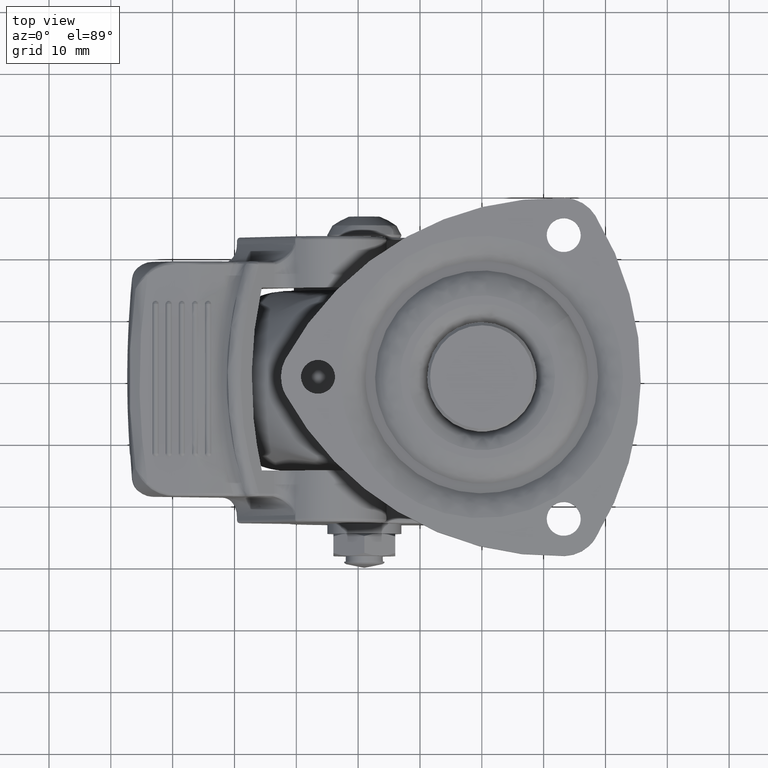
[diagram: clean part render]
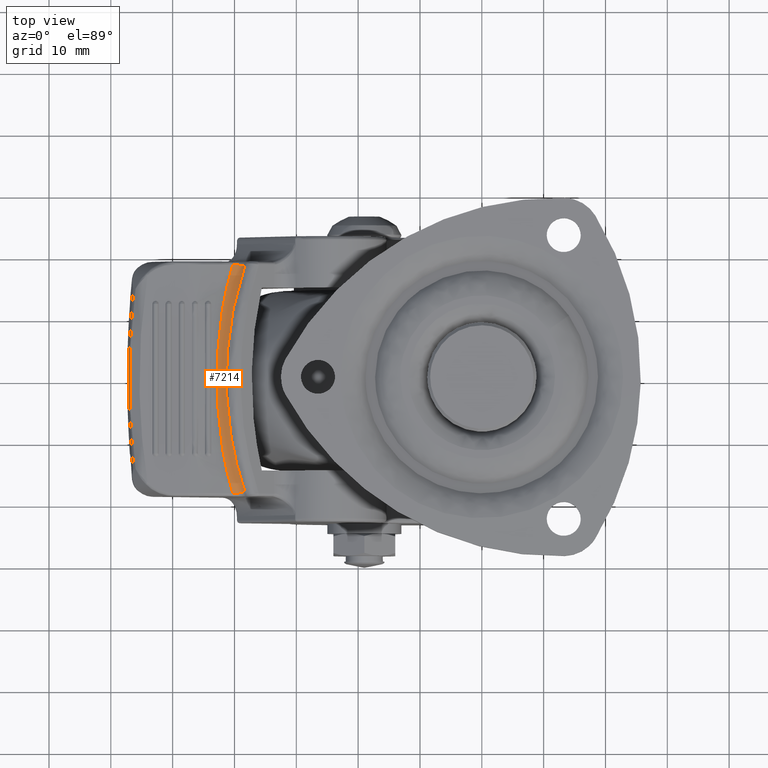
[diagram: same view with one face highlighted and labeled with its STEP entity id]
A machine part, top view. The second image highlights one B-rep face of the part: STEP entity #7214.
In plain terms, the highlighted face is a freeform B-spline surface patch.
Its self-contained STEP definition (entity closure, byte-faithful):
#3061=CARTESIAN_POINT('',(-39.709534720390550,-18.567988689888050,-18.982872447106001));
#3062=VERTEX_POINT('',#3061);
#3176=CARTESIAN_POINT('',(-40.265324539791600,-18.505156743313702,-18.790108130897551));
#3177=VERTEX_POINT('',#3176);
#3201=CARTESIAN_POINT('',(-39.709534720390550,-18.567988689888050,-18.982872447106001));
#3202=CARTESIAN_POINT('',(-39.807371431200608,-18.557711240111519,-18.965689237058498));
#3203=CARTESIAN_POINT('',(-39.902513022640427,-18.547327891845931,-18.940769812484980));
#3204=CARTESIAN_POINT('',(-40.087746838356033,-18.526379107085809,-18.876431672400869));
#3205=CARTESIAN_POINT('',(-40.177837500170867,-18.515813520964251,-18.837008500670400));
#3206=CARTESIAN_POINT('',(-40.265324539791600,-18.505156743313851,-18.790108130897551));
#3207=B_SPLINE_CURVE_WITH_KNOTS('',3,(#3201,#3202,#3203,#3204,#3205,#3206),.UNSPECIFIED.,.F.,.U.,(4,2,4),(0.0,0.500000000000000,1.0),.UNSPECIFIED.);
#3208=EDGE_CURVE('',#3062,#3177,#3207,.T.);
#4155=CARTESIAN_POINT('',(-38.333111116443398,-18.227456871348700,-18.324121191396699));
#4156=VERTEX_POINT('',#4155);
#4164=CARTESIAN_POINT('',(-39.709534720390550,-18.567988689888072,-18.982872447106029));
#4165=CARTESIAN_POINT('',(-38.852795419751878,-18.258177663073305,-19.077761330780508));
#4166=CARTESIAN_POINT('',(-38.333111116443433,-18.227456871348739,-18.324121191396671));
#4174=(BOUNDED_CURVE()B_SPLINE_CURVE(2,(#4164,#4165,#4166),.UNSPECIFIED.,.F.,.U.)CURVE()GEOMETRIC_REPRESENTATION_ITEM()QUASI_UNIFORM_CURVE()RATIONAL_B_SPLINE_CURVE((1.0,0.853459816548103,1.0))REPRESENTATION_ITEM(''));
#4175=EDGE_CURVE('',#3062,#4156,#4174,.T.);
#5826=CARTESIAN_POINT('',(-39.709534720390550,18.567988689888050,-18.982872447106001));
#5827=VERTEX_POINT('',#5826);
#5941=CARTESIAN_POINT('',(-40.265324539791600,18.505156743313702,-18.790108130897551));
#5942=VERTEX_POINT('',#5941);
#5956=CARTESIAN_POINT('',(-39.709534720390550,18.567988689888050,-18.982872447106001));
#5957=CARTESIAN_POINT('',(-39.807371431200608,18.557711240111509,-18.965689237058498));
#5958=CARTESIAN_POINT('',(-39.902513022640370,18.547327891845939,-18.940769812484831));
#5959=CARTESIAN_POINT('',(-40.087746838356082,18.526379107085830,-18.876431672401011));
#5960=CARTESIAN_POINT('',(-40.177837500170867,18.515813520964251,-18.837008500670400));
#5961=CARTESIAN_POINT('',(-40.265324539791600,18.505156743313851,-18.790108130897551));
#5962=B_SPLINE_CURVE_WITH_KNOTS('',3,(#5956,#5957,#5958,#5959,#5960,#5961),.UNSPECIFIED.,.F.,.U.,(4,2,4),(0.0,0.500000000000000,1.0),.UNSPECIFIED.);
#5963=EDGE_CURVE('',#5827,#5942,#5962,.T.);
#7010=CARTESIAN_POINT('',(-38.333111116443398,18.227456871348700,-18.324121191396699));
#7011=VERTEX_POINT('',#7010);
#7020=CARTESIAN_POINT('',(-39.709534720390550,18.567988689888072,-18.982872447106029));
#7021=CARTESIAN_POINT('',(-38.852795419751878,18.258177663073305,-19.077761330780508));
#7022=CARTESIAN_POINT('',(-38.333111116443433,18.227456871348739,-18.324121191396671));
#7030=(BOUNDED_CURVE()B_SPLINE_CURVE(2,(#7020,#7021,#7022),.UNSPECIFIED.,.F.,.U.)CURVE()GEOMETRIC_REPRESENTATION_ITEM()QUASI_UNIFORM_CURVE()RATIONAL_B_SPLINE_CURVE((1.0,0.853459816548103,1.0))REPRESENTATION_ITEM(''));
#7031=EDGE_CURVE('',#5827,#7011,#7030,.T.);
#7036=CARTESIAN_POINT('',(-40.141676671206760,-18.945459119601367,-18.861219602922574));
#7037=CARTESIAN_POINT('',(-40.160081383153361,-18.884793671948742,-18.850691628787779));
#7038=CARTESIAN_POINT('',(-40.178486293689950,-18.824127569705663,-18.840163541054348));
#7039=CARTESIAN_POINT('',(-40.426972029691477,-18.005071099082357,-18.698023234317578));
#7040=CARTESIAN_POINT('',(-40.643100765035747,-17.236191062242693,-18.573510901981845));
#7041=CARTESIAN_POINT('',(-41.042233584378288,-15.698007964312733,-18.342365982038963));
#7042=CARTESIAN_POINT('',(-41.225760563539147,-14.927270275375919,-18.235436754746662));
#7043=CARTESIAN_POINT('',(-41.730172416078659,-12.609895115968062,-17.940306912947836));
#7044=CARTESIAN_POINT('',(-42.004944180887286,-11.058162465968442,-17.777771874861028));
#7045=CARTESIAN_POINT('',(-42.657134276656080,-6.379088249325822,-17.390302284262486));
#7046=CARTESIAN_POINT('',(-42.864266286923403,-3.228883220917938,-17.264821523877313));
#7047=CARTESIAN_POINT('',(-42.866018991626163,1.574543862247204,-17.263766110925626));
#7048=CARTESIAN_POINT('',(-42.814414323366186,3.169645054539271,-17.294898122800262));
#7049=CARTESIAN_POINT('',(-42.654932915325595,5.556268689658560,-17.390558273667214));
#7050=CARTESIAN_POINT('',(-42.587989405552186,6.350859685337404,-17.430659213613367));
#7051=CARTESIAN_POINT('',(-42.425277543364651,7.938734936462400,-17.527852308121361));
#7052=CARTESIAN_POINT('',(-42.329264987035636,8.733570702781668,-17.585090451829874));
#7053=CARTESIAN_POINT('',(-41.777609180020377,12.680184333126748,-17.912825060511832));
#7054=CARTESIAN_POINT('',(-41.109101175413315,15.756606402982742,-18.307850953273359));
#7055=CARTESIAN_POINT('',(-40.178652159824551,18.823581576616206,-18.840068194641976));
#7056=CARTESIAN_POINT('',(-40.160413110973664,18.883701700426549,-18.850500938512919));
#7057=CARTESIAN_POINT('',(-40.142174256263907,18.943821184302745,-18.860933571335053));
#7058=CARTESIAN_POINT('',(-40.137589727399721,-18.943625595784592,-18.863447636306446));
#7059=CARTESIAN_POINT('',(-40.155993281217093,-18.882964853751478,-18.852911312239037));
#7060=CARTESIAN_POINT('',(-40.174396934449661,-18.822303784031707,-18.842374931254877));
#7061=CARTESIAN_POINT('',(-40.422855988897631,-18.003347252200761,-18.700128214065476));
#7062=CARTESIAN_POINT('',(-40.638966202741628,-17.234560091779525,-18.575520924385003));
#7063=CARTESIAN_POINT('',(-41.038074224814650,-15.696558251906536,-18.344193105803996));
#7064=CARTESIAN_POINT('',(-41.221594948946553,-14.925908798772342,-18.237176110024730));
#7065=CARTESIAN_POINT('',(-41.726003375606730,-12.608792996281574,-17.941792200642983));
#7066=CARTESIAN_POINT('',(-42.000792352724062,-11.057220112603909,-17.779105949342821));
#7067=CARTESIAN_POINT('',(-42.653062798161450,-6.378599233047366,-17.391238546401958));
#7068=CARTESIAN_POINT('',(-42.860277137956722,-3.228635496658261,-17.265585903111148));
#7069=CARTESIAN_POINT('',(-42.862030453429369,1.574423047948104,-17.264529072895698));
#7070=CARTESIAN_POINT('',(-42.810406244931244,3.169402471442722,-17.295704023553114));
#7071=CARTESIAN_POINT('',(-42.650882071218156,5.555828973748122,-17.391481332143456));
#7072=CARTESIAN_POINT('',(-42.583922620976807,6.350352508947509,-17.431629462163130));
#7073=CARTESIAN_POINT('',(-42.421179346186854,7.938087193020935,-17.528930940261667));
#7074=CARTESIAN_POINT('',(-42.325151413532573,8.732849926390232,-17.586230148109049));
#7075=CARTESIAN_POINT('',(-41.773432681813141,12.679091460064678,-17.914291239452375));
#7076=CARTESIAN_POINT('',(-41.104911547893536,15.755176362853817,-18.309652315146351));
#7077=CARTESIAN_POINT('',(-40.174560949199169,18.821763534865891,-18.842280797501406));
#7078=CARTESIAN_POINT('',(-40.156321308498725,18.881884362726559,-18.852723046002819));
#7079=CARTESIAN_POINT('',(-40.138081764996102,18.942004870207189,-18.863165238858141));
#7080=CARTESIAN_POINT('',(-39.035422304642310,-18.449160705854130,-19.464303906525494));
#7081=CARTESIAN_POINT('',(-39.054316913052801,-18.390128368506371,-19.451079567626973));
#7082=CARTESIAN_POINT('',(-39.073184207874831,-18.331181366876237,-19.437874345512572));
#7083=CARTESIAN_POINT('',(-39.325249035994105,-17.543656394472944,-19.261454139333733));
#7084=CARTESIAN_POINT('',(-39.545926079434800,-16.803385996590261,-19.106903687329883));
#7085=CARTESIAN_POINT('',(-39.956207142378823,-15.319481899824060,-18.819435754735927));
#7086=CARTESIAN_POINT('',(-40.146335474414080,-14.574474314182121,-18.686151453458105));
#7087=CARTESIAN_POINT('',(-40.672605923169641,-12.330318829899511,-18.317081978893576));
#7088=CARTESIAN_POINT('',(-40.964735977400970,-10.822063171430688,-18.112013843812345));
#7089=CARTESIAN_POINT('',(-41.668336545326873,-6.260325940410583,-17.617682554267088));
#7090=CARTESIAN_POINT('',(-41.908533123353756,-3.169532644548696,-17.447953963756078));
#7091=CARTESIAN_POINT('',(-41.910535486928907,1.545601913035276,-17.446539232592944));
#7092=CARTESIAN_POINT('',(-41.851058602519103,3.111339355777732,-17.488599197589455));
#7093=CARTESIAN_POINT('',(-41.672515499631224,5.449628059480215,-17.614419942670274));
#7094=CARTESIAN_POINT('',(-41.598087516552781,6.227407150021346,-17.666828810111966));
#7095=CARTESIAN_POINT('',(-41.419257422832260,7.779727717730015,-17.792633525012995));
#7096=CARTESIAN_POINT('',(-41.314596572940111,8.555781479501471,-17.866211918434821));
#7097=CARTESIAN_POINT('',(-40.719577336197922,12.403326917283845,-18.284252014592298));
#7098=CARTESIAN_POINT('',(-40.016590593042174,15.383701182484023,-18.777584097715433));
#7099=CARTESIAN_POINT('',(-39.072860508010365,18.332192700746781,-19.438100902994528));
#7100=CARTESIAN_POINT('',(-39.053669420180462,18.392151327254702,-19.451532747781815));
#7101=CARTESIAN_POINT('',(-39.034450926220629,18.452195578607022,-19.464983774122889));
#7102=CARTESIAN_POINT('',(-38.270747543584136,-18.401603760375703,-18.353458251595320));
#7103=CARTESIAN_POINT('',(-38.290554033959722,-18.343497116640819,-18.342256287861940));
#7104=CARTESIAN_POINT('',(-38.310360635315433,-18.285390147321785,-18.331054261361540));
#7105=CARTESIAN_POINT('',(-38.577760621794944,-17.500914177353522,-18.179820756886922));
#7106=CARTESIAN_POINT('',(-38.812255827408364,-16.762784140817338,-18.047364747590688));
#7107=CARTESIAN_POINT('',(-39.248754545971309,-15.282895070484150,-17.801521018560123));
#7108=CARTESIAN_POINT('',(-39.451313857159867,-14.539766818113492,-17.687817515459884));
#7109=CARTESIAN_POINT('',(-40.012892812958512,-12.301005388236788,-17.374064219040598));
#7110=CARTESIAN_POINT('',(-40.325966288676931,-10.796016783691254,-17.201391673379792));
#7111=CARTESIAN_POINT('',(-41.083443576817245,-6.244190581830842,-16.790023800045521));
#7112=CARTESIAN_POINT('',(-41.347935335320471,-3.160833182212208,-16.657286594465791));
#7113=CARTESIAN_POINT('',(-41.350132170295808,1.541359675347884,-16.656169345079025));
#7114=CARTESIAN_POINT('',(-41.284690496992170,3.102867290528601,-16.689109326102262));
#7115=CARTESIAN_POINT('',(-41.090170113642984,5.435477680304381,-16.790484177132356));
#7116=CARTESIAN_POINT('',(-41.009275422875888,6.211456922838575,-16.832995817287593));
#7117=CARTESIAN_POINT('',(-40.815632606294514,7.760293685295651,-16.936091290658869));
#7118=CARTESIAN_POINT('',(-40.702607857588056,8.534658528555058,-16.996829929955044));
#7119=CARTESIAN_POINT('',(-40.062067368468917,12.373845859357626,-17.344768772730241));
#7120=CARTESIAN_POINT('',(-39.311703906311635,15.347751705331998,-17.764737998678491));
#7121=CARTESIAN_POINT('',(-38.310539383896945,18.284865356590817,-18.330952890431181));
#7122=CARTESIAN_POINT('',(-38.290911528635164,18.342447542479029,-18.342053547409712));
#7123=CARTESIAN_POINT('',(-38.271283781865847,18.400029410083096,-18.353154143029620));
#7124=CARTESIAN_POINT('',(-38.267807101170291,-18.401420887255412,-18.349186660789226));
#7125=CARTESIAN_POINT('',(-38.287614955750399,-18.343317672339467,-18.337989363625688));
#7126=CARTESIAN_POINT('',(-38.307423032013105,-18.285213807152669,-18.326791941145913));
#7127=CARTESIAN_POINT('',(-38.574853766156437,-17.500747960121942,-18.175614468151426));
#7128=CARTESIAN_POINT('',(-38.809377888473946,-16.762624873542684,-18.043208536596985));
#7129=CARTESIAN_POINT('',(-39.245933961368365,-15.282749200290120,-17.797462634088074));
#7130=CARTESIAN_POINT('',(-39.448521607173504,-14.539627380716105,-17.683806707946069));
#7131=CARTESIAN_POINT('',(-40.010185167256033,-12.300885077736483,-17.370193812427043));
#7132=CARTESIAN_POINT('',(-40.323311715165509,-10.795908541155351,-17.197607346203373));
#7133=CARTESIAN_POINT('',(-41.080935668781109,-6.244121396530921,-16.786474959227384));
#7134=CARTESIAN_POINT('',(-41.345498580193507,-3.160795368186000,-16.653849793952133));
#7135=CARTESIAN_POINT('',(-41.347695995866651,1.541341233574487,-16.652733464433073));
#7136=CARTESIAN_POINT('',(-41.282236585123023,3.102830583480185,-16.685645363944538));
#7137=CARTESIAN_POINT('',(-41.087669633973128,5.435416921283530,-16.786946354595134));
#7138=CARTESIAN_POINT('',(-41.006756459317018,6.211388687078033,-16.829428643743341));
#7139=CARTESIAN_POINT('',(-40.813072115572687,7.760211248890826,-16.932457960179715));
#7140=CARTESIAN_POINT('',(-40.700024412094606,8.534569360256587,-16.993159926041777));
#7141=CARTESIAN_POINT('',(-40.059365111260256,12.373724697086006,-17.340907652006074));
#7142=CARTESIAN_POINT('',(-39.308889886702097,15.347608189309417,-17.760694556182262));
#7143=CARTESIAN_POINT('',(-38.307603686610726,18.284683099073085,-18.326689265413933));
#7144=CARTESIAN_POINT('',(-38.287976259955677,18.342256270826105,-18.337784014988614));
#7145=CARTESIAN_POINT('',(-38.268349049993411,18.399828806953682,-18.348878642073853));
#7153=(BOUNDED_SURFACE()B_SPLINE_SURFACE(3,2,((#7036,#7058,#7080,#7102,#7124),(#7037,#7059,#7081,#7103,#7125),(#7038,#7060,#7082,#7104,#7126),(#7039,#7061,#7083,#7105,#7127),(#7040,#7062,#7084,#7106,#7128),(#7041,#7063,#7085,#7107,#7129),(#7042,#7064,#7086,#7108,#7130),(#7043,#7065,#7087,#7109,#7131),(#7044,#7066,#7088,#7110,#7132),(#7045,#7067,#7089,#7111,#7133),(#7046,#7068,#7090,#7112,#7134),(#7047,#7069,#7091,#7113,#7135),(#7048,#7070,#7092,#7114,#7136),(#7049,#7071,#7093,#7115,#7137),(#7050,#7072,#7094,#7116,#7138),(#7051,#7073,#7095,#7117,#7139),(#7052,#7074,#7096,#7118,#7140),(#7053,#7075,#7097,#7119,#7141),(#7054,#7076,#7098,#7120,#7142),(#7055,#7077,#7099,#7121,#7143),(#7056,#7078,#7100,#7122,#7144),(#7057,#7079,#7101,#7123,#7145)),.UNSPECIFIED.,.F.,.F.,.U.)B_SPLINE_SURFACE_WITH_KNOTS((4,2,2,2,2,2,2,2,2,2,4),(3,1,1,3),(0.0,0.193299201795698,2.609539278217874,5.025779354640051,9.858259507484400,19.523219813173100,24.355699966017450,26.771940042439621,29.188180118861801,38.853140424550503,39.046439626343741),(0.0,0.011513921356037,2.306546695708669,2.318490160818925),.UNSPECIFIED.)GEOMETRIC_REPRESENTATION_ITEM()RATIONAL_B_SPLINE_SURFACE(((1.002561284443251,1.001280642221625,0.744733720166587,1.001328418461420,1.002656836922841),(1.002555875598566,1.001277937799283,0.745272783941601,1.001325613146629,1.002651226293258),(1.002550466753881,1.001275233376941,0.745811847716614,1.001322807831837,1.002645615663675),(1.002477447349127,1.001238723674564,0.753089208829826,1.001284936081367,1.002569872162735),(1.002412227857572,1.001206113928786,0.759589204184003,1.001251109781109,1.002502219562217),(1.002288290938605,1.001144145469302,0.771941177164704,1.001186829497190,1.002373658994380),(1.002229432689138,1.001114716344569,0.777807189593958,1.001156302475716,1.002312604951433),(1.002062241150201,1.001031120575101,0.794470064455986,1.001069588043236,1.002139176086473),(1.001963077853038,1.000981538926519,0.804353014406961,1.001018156678401,1.002036313356803),(1.001708827954235,1.000854413977117,0.829692420183024,1.000886289145971,1.001772578291942),(1.001595458770785,1.000797729385392,0.840991176860898,1.000827489852262,1.001654979704523),(1.001594550059100,1.000797275029550,0.841081742144147,1.000827018546007,1.001654037092014),(1.001622388823154,1.000811194411577,0.838307236659706,1.000841457211033,1.001682914422066),(1.001697274769112,1.000848637384556,0.830843849730146,1.000880297049136,1.001760594098272),(1.001727622734592,1.000863811367296,0.827819268735695,1.000896037119598,1.001792074239196),(1.001797285098678,1.000898642549339,0.820876481661995,1.000932167730066,1.001864335460133),(1.001836685901939,1.000918342950970,0.816949664202280,1.000952603084127,1.001905206168254),(1.002051536419832,1.001025768209916,0.795536934129623,1.001064036000204,1.002128072000408),(1.002278269927479,1.001139134963739,0.772939905063526,1.001181632067355,1.002363264134709),(1.002550393668712,1.001275196834356,0.745819131632080,1.001322769925978,1.002645539851955),(1.002555729428227,1.001277864714113,0.745287351772528,1.001325537334910,1.002651074669819),(1.002561065187742,1.001280532593871,0.744755571912976,1.001328304743842,1.002656609487683)))REPRESENTATION_ITEM('')SURFACE());
#7154=ORIENTED_EDGE('',*,*,#7031,.F.);
#7155=ORIENTED_EDGE('',*,*,#5963,.T.);
#7156=CARTESIAN_POINT('',(-40.265324539791600,-18.505156743313702,-18.790108130897551));
#7157=CARTESIAN_POINT('',(-40.712205951397003,-17.007527060451181,-18.533663172417409));
#7158=CARTESIAN_POINT('',(-41.097113189454340,-15.497574198247021,-18.309560288655309));
#7159=CARTESIAN_POINT('',(-41.750269100531618,-12.454093410740310,-17.926466190933301));
#7160=CARTESIAN_POINT('',(-42.018444335213367,-10.920552169698080,-17.767498902183060));
#7161=CARTESIAN_POINT('',(-42.443305642898132,-7.830692613008363,-17.514550641402408));
#7162=CARTESIAN_POINT('',(-42.599934729706867,-6.274363811686705,-17.420589946680639));
#7163=CARTESIAN_POINT('',(-42.755323303804872,-3.923512334187408,-17.327199085304350));
#7164=CARTESIAN_POINT('',(-42.793877341724198,-3.137173061791319,-17.303975085771061));
#7165=CARTESIAN_POINT('',(-42.832277823412518,-1.953661868468390,-17.280830302091012));
#7166=CARTESIAN_POINT('',(-42.841837413838611,-1.558490686278544,-17.275064780319301));
#7167=CARTESIAN_POINT('',(-42.854496910494653,-0.766817038816777,-17.267428594369299));
#7168=CARTESIAN_POINT('',(-42.857581236009203,-0.371066416559108,-17.265567369215571));
#7169=CARTESIAN_POINT('',(-42.856934356785203,1.603547358075363,-17.265957669755789));
#7170=CARTESIAN_POINT('',(-42.805493501271613,3.173817871018128,-17.297048578171871));
#7171=CARTESIAN_POINT('',(-42.597940121914377,6.295052129960399,-17.421786157963449));
#7172=CARTESIAN_POINT('',(-42.441478693433062,7.845951473329770,-17.515641933076079));
#7173=CARTESIAN_POINT('',(-42.017236375049393,10.927350920187211,-17.768214468788202));
#7174=CARTESIAN_POINT('',(-41.749512146007717,12.457860330886330,-17.926911633993601));
#7175=CARTESIAN_POINT('',(-41.097041842238077,15.497666573325830,-18.309600665728400));
#7176=CARTESIAN_POINT('',(-40.712370526734460,17.006975520594850,-18.533568730101901));
#7177=CARTESIAN_POINT('',(-40.265324539791600,18.505156743313702,-18.790108130897551));
#7178=B_SPLINE_CURVE_WITH_KNOTS('',3,(#7156,#7157,#7158,#7159,#7160,#7161,#7162,#7163,#7164,#7165,#7166,#7167,#7168,#7169,#7170,#7171,#7172,#7173,#7174,#7175,#7176,#7177),.UNSPECIFIED.,.F.,.U.,(4,2,2,2,2,2,2,2,2,2,4),(0.0,0.125000000000000,0.250000000000000,0.375000000000000,0.437500000000000,0.468750000000000,0.500000000000000,0.625000000000000,0.750000000000000,0.875000000000000,1.0),.UNSPECIFIED.);
#7179=EDGE_CURVE('',#3177,#5942,#7178,.T.);
#7180=ORIENTED_EDGE('',*,*,#7179,.F.);
#7181=ORIENTED_EDGE('',*,*,#3208,.F.);
#7182=ORIENTED_EDGE('',*,*,#4175,.T.);
#7183=CARTESIAN_POINT('',(-38.333111116443447,18.227456871348750,-18.324121191396699));
#7184=CARTESIAN_POINT('',(-38.830207874615503,16.768927256424380,-18.042840311608881));
#7185=CARTESIAN_POINT('',(-39.265851643579417,15.290627690242140,-17.797081340710399));
#7186=CARTESIAN_POINT('',(-40.017091295386052,12.295115241833679,-17.377113438618771));
#7187=CARTESIAN_POINT('',(-40.332702999639110,10.777903183721030,-17.202926796822730));
#7188=CARTESIAN_POINT('',(-40.651014072146111,8.856772788788444,-17.029978543218750));
#7189=CARTESIAN_POINT('',(-40.710892552754181,8.471031818484203,-16.997604912028802));
#7190=CARTESIAN_POINT('',(-40.822696117737308,7.698663798370895,-16.937442147040120));
#7191=CARTESIAN_POINT('',(-40.874621217667759,7.312088248206908,-16.909652649262409));
#7192=CARTESIAN_POINT('',(-41.018463151365253,6.151191184290284,-16.833047771064319));
#7193=CARTESIAN_POINT('',(-41.098455746923548,5.375699946502066,-16.790996006634199));
#7194=CARTESIAN_POINT('',(-41.226375208859082,3.821602995407249,-16.724300107722762));
#7195=CARTESIAN_POINT('',(-41.274295913533393,3.042997160968369,-16.699647320426781));
#7196=CARTESIAN_POINT('',(-41.321761846408883,1.872740897578210,-16.675322319338449));
#7197=CARTESIAN_POINT('',(-41.333513572869698,1.482264076025127,-16.669324727771912));
#7198=CARTESIAN_POINT('',(-41.348814908641842,0.700524129340002,-16.661522098961470));
#7199=CARTESIAN_POINT('',(-41.352363987879812,0.309101601060303,-16.659717001975910));
#7200=CARTESIAN_POINT('',(-41.349471582282128,-1.648300121978507,-16.661189620015200));
#7201=CARTESIAN_POINT('',(-41.281194753709201,-3.200259555322642,-16.695637863624711));
#7202=CARTESIAN_POINT('',(-41.020207020272437,-6.277421606869253,-16.831881519330992));
#7203=CARTESIAN_POINT('',(-40.827652638233793,-7.802627334538190,-16.933926804119810));
#7204=CARTESIAN_POINT('',(-40.322537049465389,-10.826725941873750,-17.208532729074420));
#7205=CARTESIAN_POINT('',(-40.009965093630171,-12.325618233307781,-17.381080313421130));
#7206=CARTESIAN_POINT('',(-39.263779714424039,-15.296775651770011,-17.798256736294700));
#7207=CARTESIAN_POINT('',(-38.830168354780291,-16.769043211413990,-18.042862673801960));
#7208=CARTESIAN_POINT('',(-38.333111116443398,-18.227456871348700,-18.324121191396699));
#7209=B_SPLINE_CURVE_WITH_KNOTS('',3,(#7183,#7184,#7185,#7186,#7187,#7188,#7189,#7190,#7191,#7192,#7193,#7194,#7195,#7196,#7197,#7198,#7199,#7200,#7201,#7202,#7203,#7204,#7205,#7206,#7207,#7208),.UNSPECIFIED.,.F.,.U.,(4,2,2,2,2,2,2,2,2,2,2,2,4),(0.0,0.125000000000000,0.250000000000000,0.281250000000000,0.312500000000000,0.375000000000000,0.437500000000000,0.468750000000000,0.500000000000000,0.625000000000000,0.750000000000000,0.875000000000000,1.0),.UNSPECIFIED.);
#7210=EDGE_CURVE('',#7011,#4156,#7209,.T.);
#7211=ORIENTED_EDGE('',*,*,#7210,.F.);
#7212=EDGE_LOOP('',(#7154,#7155,#7180,#7181,#7182,#7211));
#7213=FACE_OUTER_BOUND('',#7212,.T.);
#7214=ADVANCED_FACE('',(#7213),#7153,.F.);